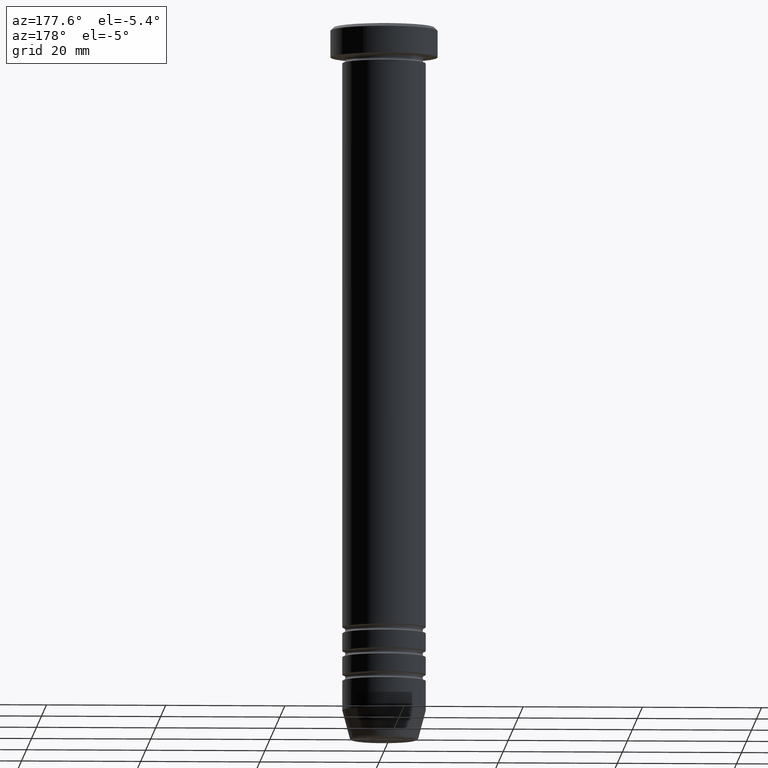
[diagram: clean part render]
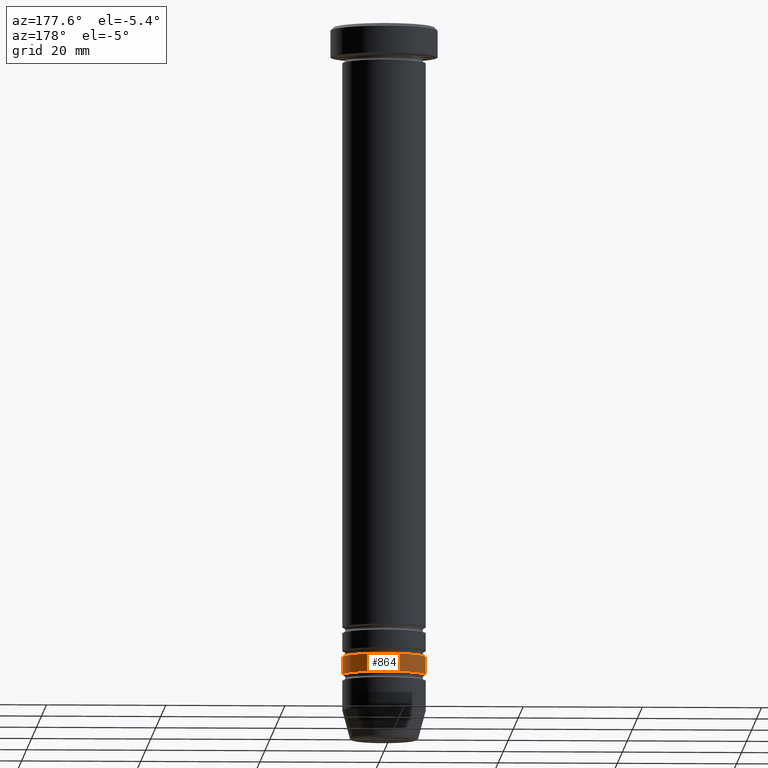
[diagram: same view with one face highlighted and labeled with its STEP entity id]
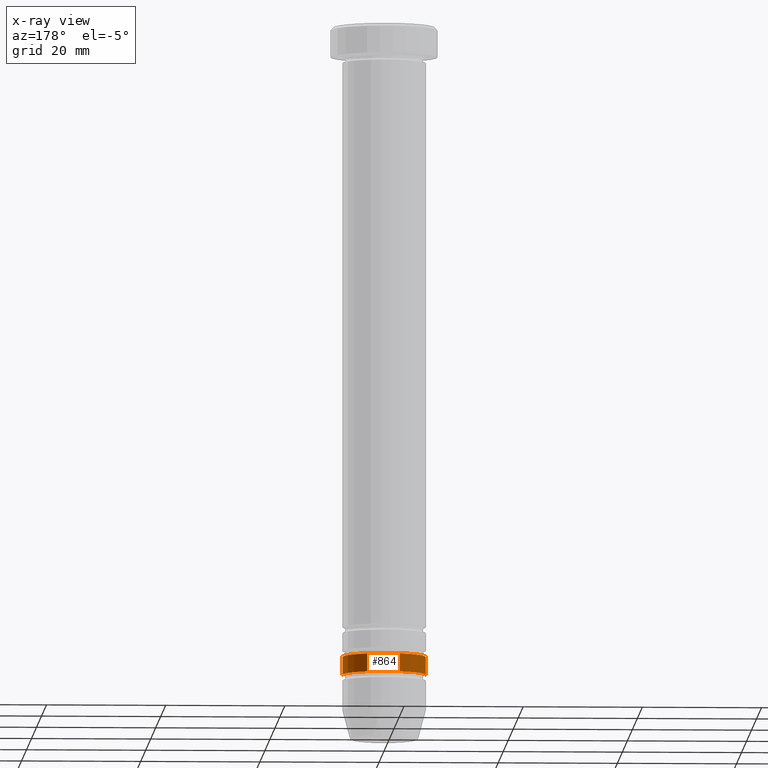
[diagram: x-ray of the same camera — body ghosted, the highlighted face saturated]
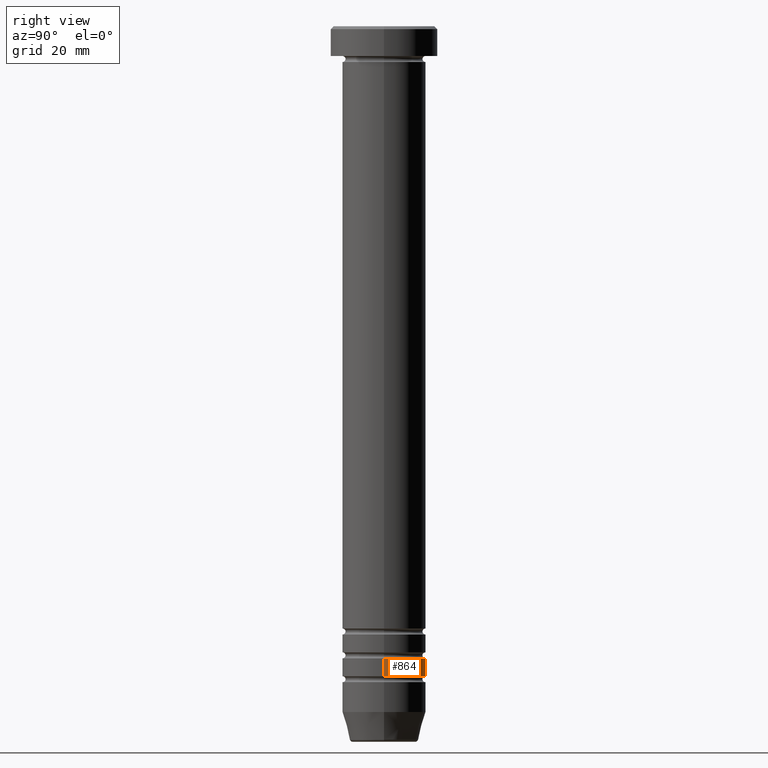
[diagram: same view with one face highlighted and labeled with its STEP entity id]
A machine part, auxiliary view. The second image highlights one B-rep face of the part: STEP entity #864.
The next image is the same camera in x-ray: the body ghosted, the highlighted face saturated — about 0% of this face is hidden behind the body in this view.
A second angle (right view) of the same face is appended — the face is thin or edge-on in the first view.
In plain terms, the highlighted cylindrical surface (partial cylindrical patch) has radius 7 mm, axis along (-0, -0, 1).
Its self-contained STEP definition (entity closure, byte-faithful):
#47 = CARTESIAN_POINT ( 'NONE',  ( 6.999999999999996447, 0.000000000000000000, 0.000000000000000000 ) ) ;
#81 = CARTESIAN_POINT ( 'NONE',  ( 6.999999999999992895, 0.000000000000000000, -108.9999999999999858 ) ) ;
#151 = DIRECTION ( 'NONE',  ( -0.000000000000000000, -0.000000000000000000, 1.000000000000000000 ) ) ;
#154 = ORIENTED_EDGE ( 'NONE', *, *, #789, .F. ) ;
#159 = VERTEX_POINT ( 'NONE', #769 ) ;
#221 = VERTEX_POINT ( 'NONE', #824 ) ;
#246 = FACE_OUTER_BOUND ( 'NONE', #503, .T. ) ;
#253 = LINE ( 'NONE', #392, #859 ) ;
#265 = AXIS2_PLACEMENT_3D ( 'NONE', #283, #359, #767 ) ;
#270 = CARTESIAN_POINT ( 'NONE',  ( 0.000000000000000000, 0.000000000000000000, -105.9999999999999858 ) ) ;
#283 = CARTESIAN_POINT ( 'NONE',  ( 0.000000000000000000, 0.000000000000000000, -108.9999999999999858 ) ) ;
#319 = CYLINDRICAL_SURFACE ( 'NONE', #964, 6.999999999999996447 ) ;
#359 = DIRECTION ( 'NONE',  ( -0.000000000000000000, -0.000000000000000000, 1.000000000000000000 ) ) ;
#384 = ORIENTED_EDGE ( 'NONE', *, *, #682, .T. ) ;
#392 = CARTESIAN_POINT ( 'NONE',  ( -6.999999999999996447, 8.572527594031468259E-16, 0.000000000000000000 ) ) ;
#402 = CARTESIAN_POINT ( 'NONE',  ( 7.000000000000000000, 0.000000000000000000, -105.9999999999999858 ) ) ;
#404 = DIRECTION ( 'NONE',  ( -0.000000000000000000, -0.000000000000000000, 1.000000000000000000 ) ) ;
#495 = ORIENTED_EDGE ( 'NONE', *, *, #977, .F. ) ;
#503 = EDGE_LOOP ( 'NONE', ( #384, #821, #495, #154 ) ) ;
#553 = AXIS2_PLACEMENT_3D ( 'NONE', #270, #823, #901 ) ;
#558 = VERTEX_POINT ( 'NONE', #81 ) ;
#572 = CARTESIAN_POINT ( 'NONE',  ( 0.000000000000000000, 0.000000000000000000, 0.000000000000000000 ) ) ;
#588 = VERTEX_POINT ( 'NONE', #402 ) ;
#644 = EDGE_CURVE ( 'NONE', #221, #159, #253, .T. ) ;
#682 = EDGE_CURVE ( 'NONE', #558, #221, #730, .T. ) ;
#684 = LINE ( 'NONE', #47, #1016 ) ;
#730 = CIRCLE ( 'NONE', #265, 6.999999999999992895 ) ;
#767 = DIRECTION ( 'NONE',  ( 1.000000000000000000, 0.000000000000000000, 0.000000000000000000 ) ) ;
#769 = CARTESIAN_POINT ( 'NONE',  ( -7.000000000000000000, 8.572527594031472204E-16, -105.9999999999999858 ) ) ;
#785 = DIRECTION ( 'NONE',  ( 1.000000000000000000, 0.000000000000000000, 0.000000000000000000 ) ) ;
#789 = EDGE_CURVE ( 'NONE', #558, #588, #684, .T. ) ;
#821 = ORIENTED_EDGE ( 'NONE', *, *, #644, .T. ) ;
#823 = DIRECTION ( 'NONE',  ( -0.000000000000000000, -0.000000000000000000, 1.000000000000000000 ) ) ;
#824 = CARTESIAN_POINT ( 'NONE',  ( -6.999999999999992895, 8.572527594031466287E-16, -108.9999999999999858 ) ) ;
#859 = VECTOR ( 'NONE', #151, 1000.000000000000000 ) ;
#864 = ADVANCED_FACE ( 'NONE', ( #246 ), #319, .T. ) ;
#875 = CIRCLE ( 'NONE', #553, 7.000000000000000000 ) ;
#901 = DIRECTION ( 'NONE',  ( 1.000000000000000000, 0.000000000000000000, 0.000000000000000000 ) ) ;
#964 = AXIS2_PLACEMENT_3D ( 'NONE', #572, #404, #785 ) ;
#977 = EDGE_CURVE ( 'NONE', #588, #159, #875, .T. ) ;
#995 = DIRECTION ( 'NONE',  ( -0.000000000000000000, -0.000000000000000000, 1.000000000000000000 ) ) ;
#1016 = VECTOR ( 'NONE', #995, 1000.000000000000000 ) ;